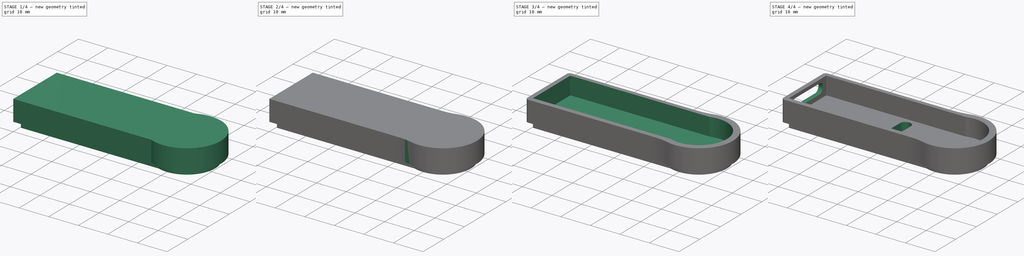
[diagram: build sequence overview — one tinted view per stage of 4, left to right]
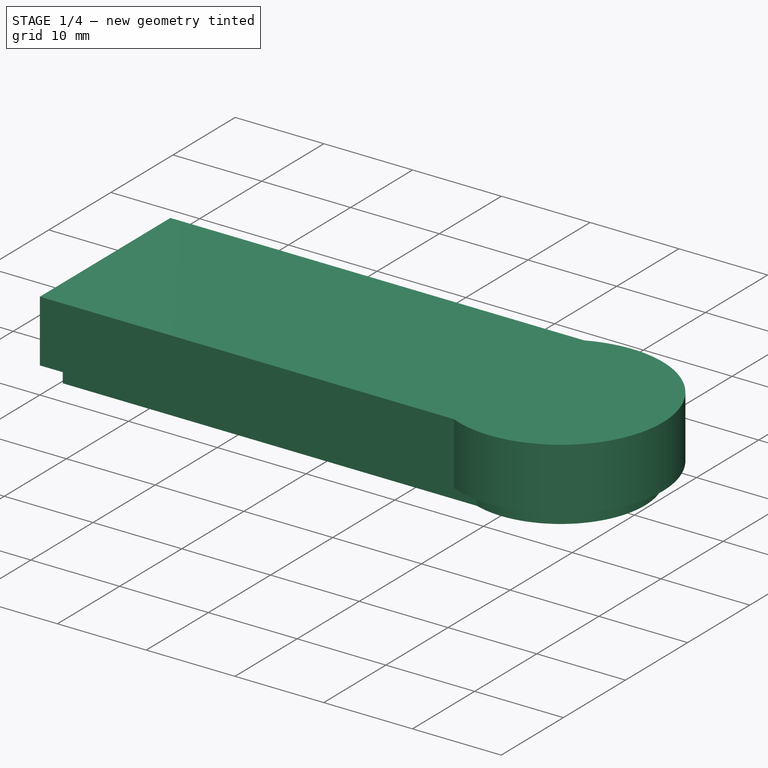
[diagram: stage 1 of 4 — iso view after this stage's code; geometry added in this stage tinted green]
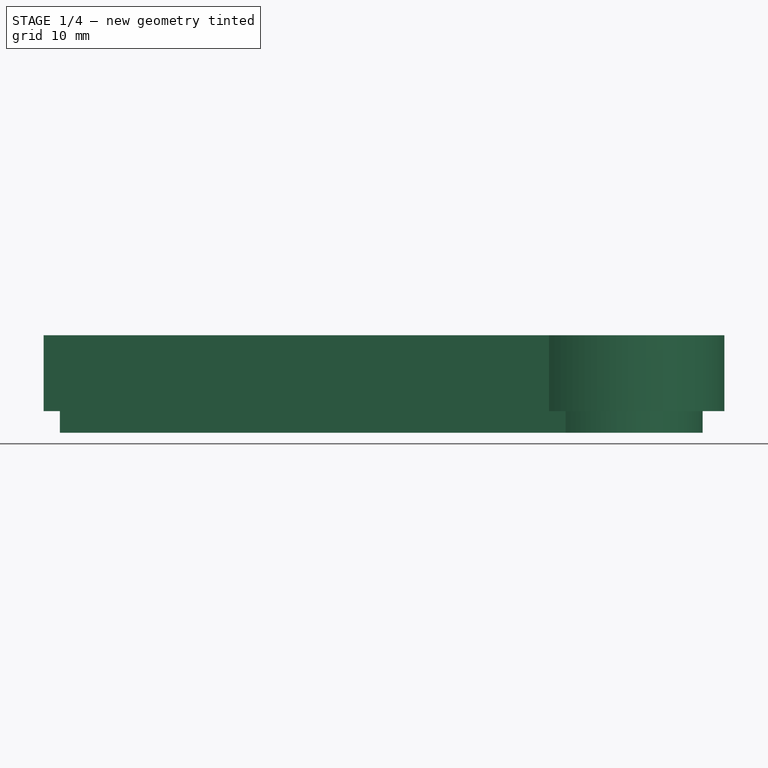
[diagram: stage 1 of 4 — front view after this stage's code; geometry added in this stage tinted green]
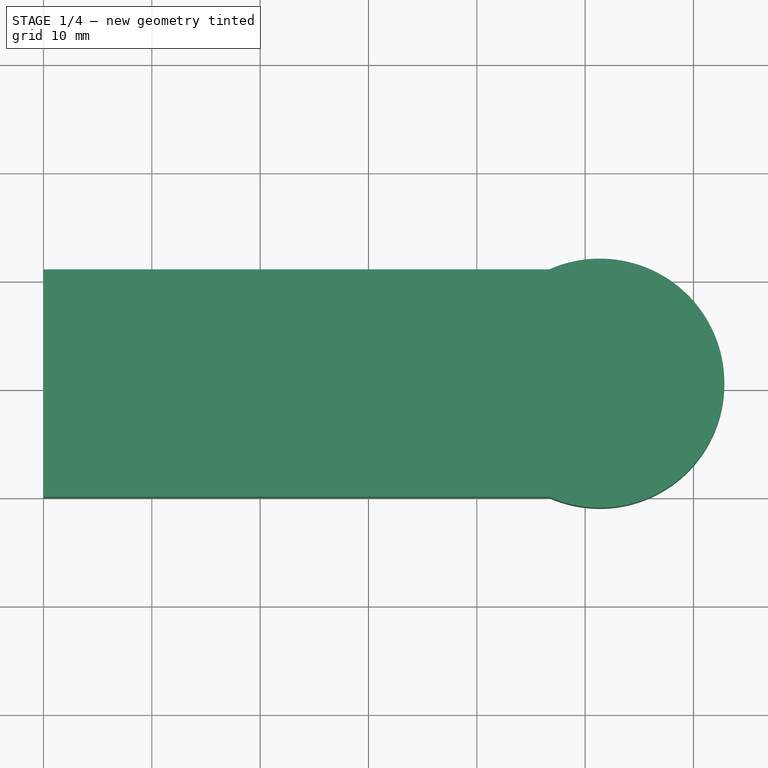
[diagram: stage 1 of 4 — top view after this stage's code; geometry added in this stage tinted green]
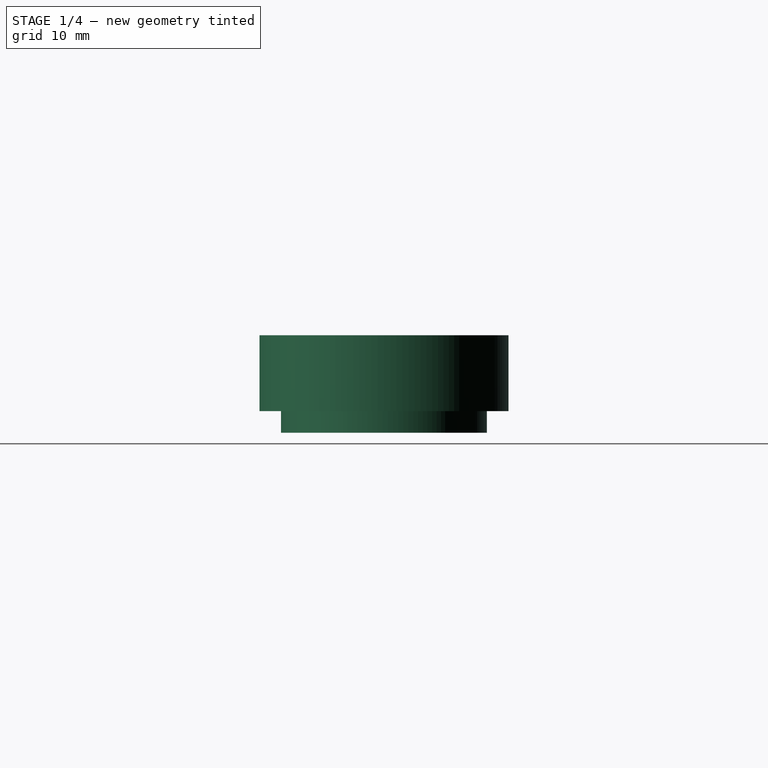
[diagram: stage 1 of 4 — right view after this stage's code; geometry added in this stage tinted green]
FCSTD DOCUMENT  (FreeCAD 0.16R6706 (Git))
Label: oaps3_DeckelP1
License: All rights reserved
LicenseURL: http://en.wikipedia.org/wiki/All_rights_reserved
objects: Sketcher::SketchObject×5, PartDesign::Fillet×4, PartDesign::Pocket×3, PartDesign::Pad×2
note: 19 computed .brp shape members not serialized (recipe doc carries the construction recipe); baked Part::Feature solids carry a one-line shape summary decoded from their .brp

FEATURE [Sketcher::SketchObject] Sketch003  label="root"
  Placement = pos=(0,0,69) rot=(0,0,1;0rad)
  sketch-geometry (4):
    g0: LineSegment StartX=0.013913 StartY=21 StartZ=0 EndX=46.6638 EndY=21 EndZ=0
    g1: LineSegment StartX=46.6638 StartY=0 StartZ=0 EndX=0.013913 EndY=0 EndZ=0
    g2: LineSegment StartX=0.013913 StartY=0 StartZ=0 EndX=0.013913 EndY=21 EndZ=0
    g3: ArcOfCircle CenterX=51.3543 CenterY=10.5 CenterZ=0 NormalX=0 NormalY=0 NormalZ=1 Radius=11.5 StartAngle=4.29228 EndAngle=8.27409
  constraints (12):
    c: Coincident(g1,g2)
    c: Coincident(g2,g0)
    c: Horizontal(g0)
    c: Horizontal(g1)
    c: Vertical(g2)
    c: PointOnObject(g1,g-1)
    c: PointOnObject(g3,g-1)
    c: Radius(g3) = 11.5
    c: Coincident(g3,g0)
    c: Coincident(g3,g1)
    c: Distance(g1,g0) = 21
    c: Equal(g0,g1)
FEATURE [PartDesign::Pad] Pad
  Length = 7
  Length2 = 100
  Placement = pos=(0,0,69) rot=(0,0,1;0rad)
  Sketch = -> Sketch003
  Type = 0
FEATURE [Sketcher::SketchObject] Sketch  label="Deckelschnitt"
  Placement = pos=(0,0,69) rot=(1,0,0;3.14159rad)
  Support = -> Pad [Face5]
  sketch-geometry (4):
    g0: LineSegment StartX=1.51172 StartY=-19.5264 StartZ=0 EndX=48.4042 EndY=-19.5264 EndZ=0
    g1: ArcOfCircle CenterX=51.3408 CenterY=-10.4917 CenterZ=0 NormalX=0 NormalY=0 NormalZ=1 Radius=9.5 StartAngle=4.39812 EndAngle=8.19109
    g2: LineSegment StartX=1.51172 StartY=-1.52638 StartZ=0 EndX=48.1985 EndY=-1.52638 EndZ=0
    g3: LineSegment StartX=1.51172 StartY=-1.52638 StartZ=0 EndX=1.51172 EndY=-19.5264 EndZ=0
  constraints (9):
    c: Radius(g1) = 9.5
    c: Coincident(g1,g0)
    c: Coincident(g2,g1)
    c: Coincident(g3,g0)
    c: Coincident(g3,g2)
    c: Parallel(g2,g0)
    c: Angle(g3,g2,g2) = 1.5708
    c: Distance(g3) = 18
    c: Parallel(g3,g-2)
FEATURE [PartDesign::Pad] Pad001
  Length = 2
  Length2 = 100
  Placement = pos=(0,0,69) rot=(0,0,1;0rad)
  Sketch = -> Sketch
  Type = 0
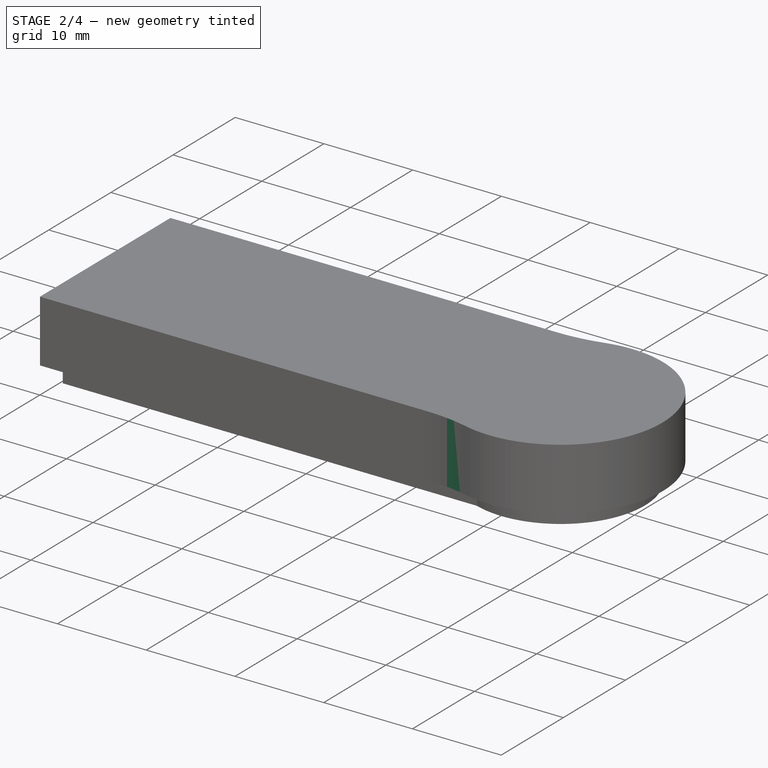
[diagram: stage 2 of 4 — iso view after this stage's code; geometry added in this stage tinted green]
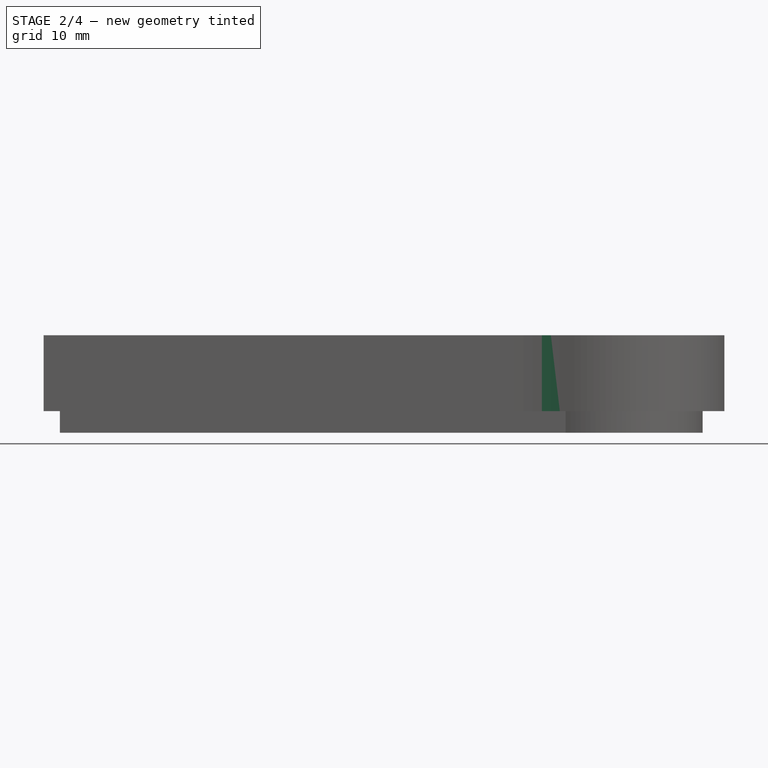
[diagram: stage 2 of 4 — front view after this stage's code; geometry added in this stage tinted green]
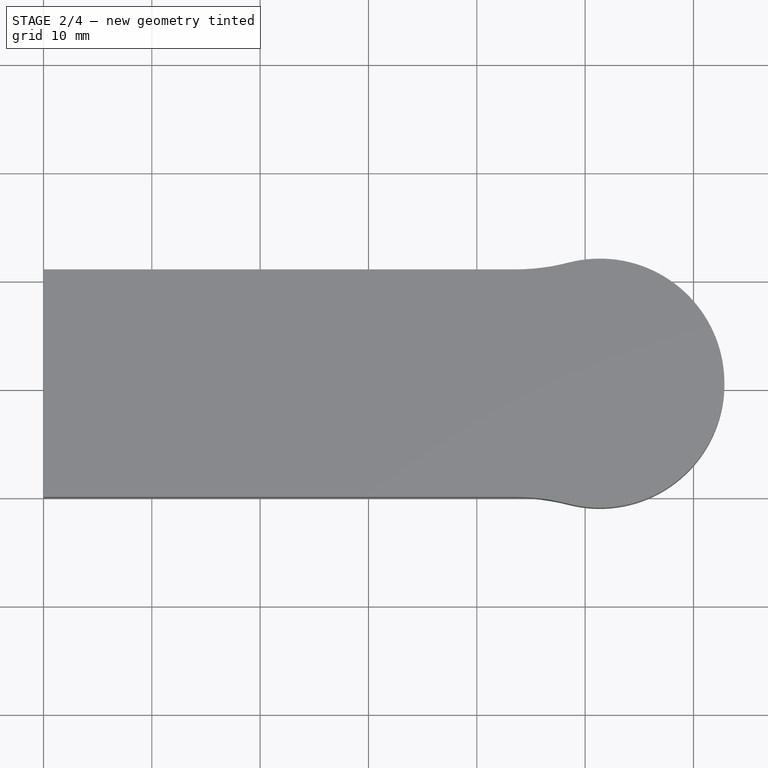
[diagram: stage 2 of 4 — top view after this stage's code; geometry added in this stage tinted green]
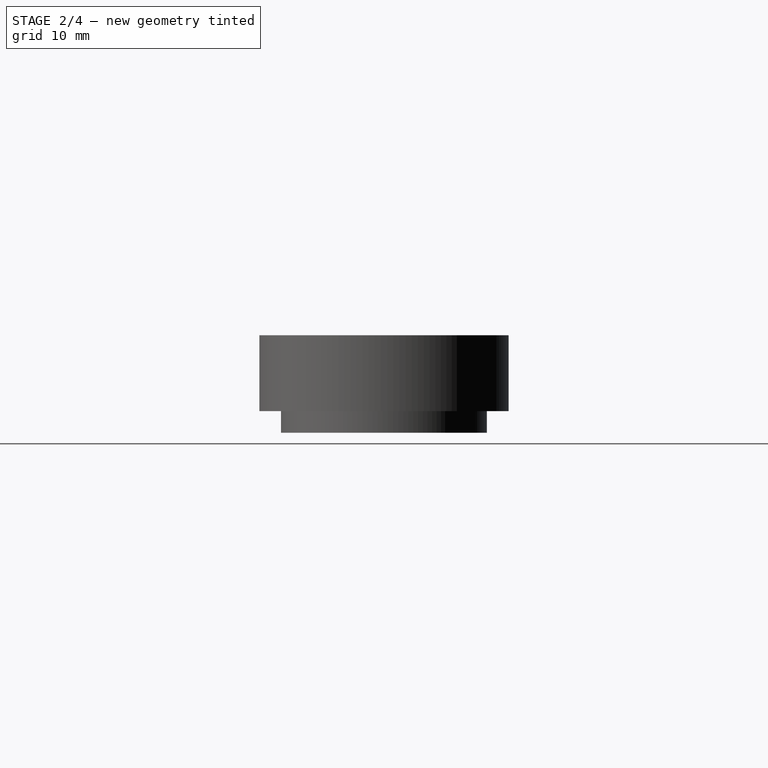
[diagram: stage 2 of 4 — right view after this stage's code; geometry added in this stage tinted green]
FEATURE [PartDesign::Fillet] Fillet
  Base = -> Pad001 [Edge5]
  Placement = pos=(0,0,69) rot=(0,0,1;0rad)
  Radius = 20
FEATURE [PartDesign::Fillet] Fillet001
  Base = -> Fillet [Edge3]
  Placement = pos=(0,0,69) rot=(0,0,1;0rad)
  Radius = 20
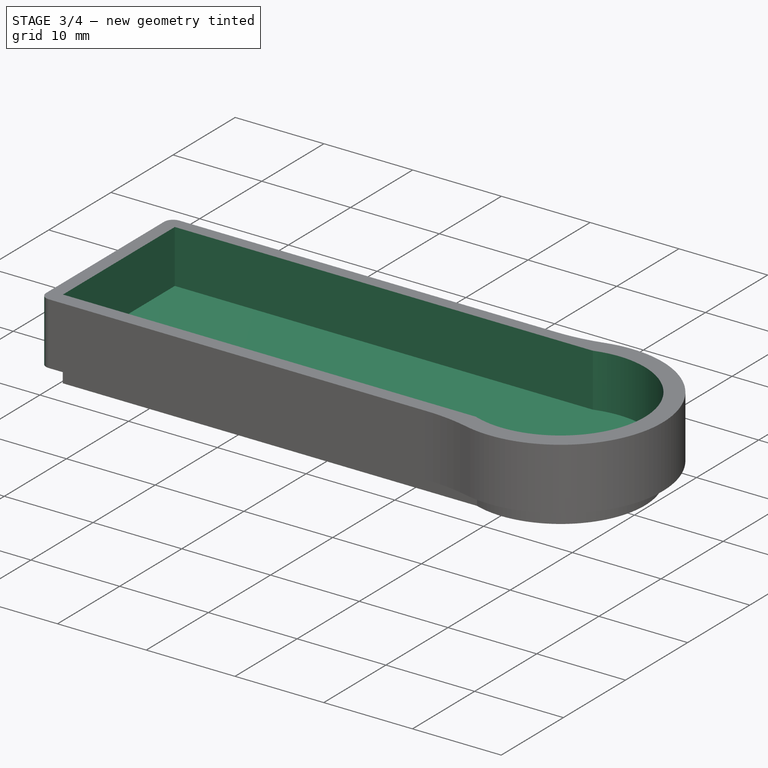
[diagram: stage 3 of 4 — iso view after this stage's code; geometry added in this stage tinted green]
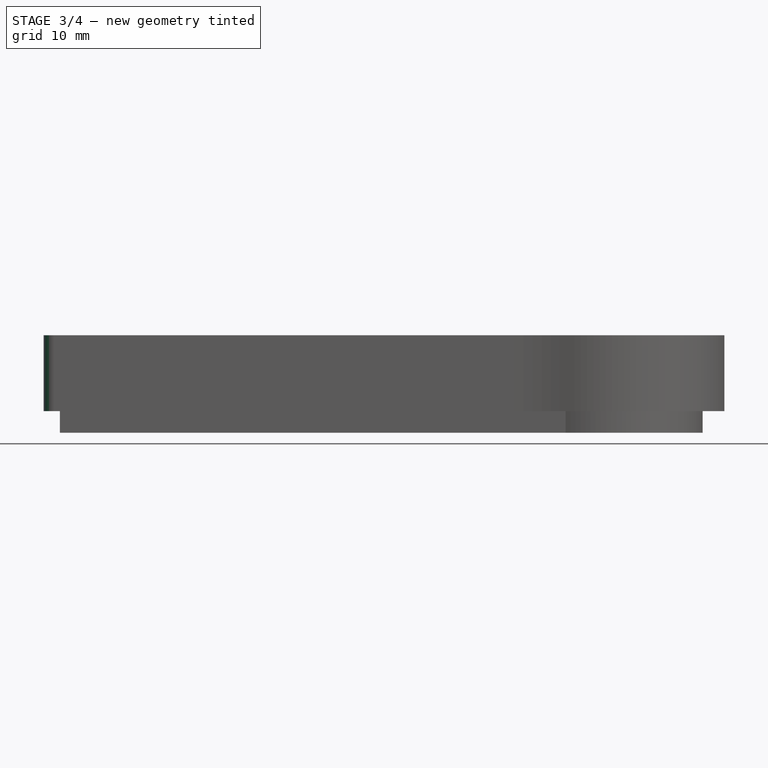
[diagram: stage 3 of 4 — front view after this stage's code; geometry added in this stage tinted green]
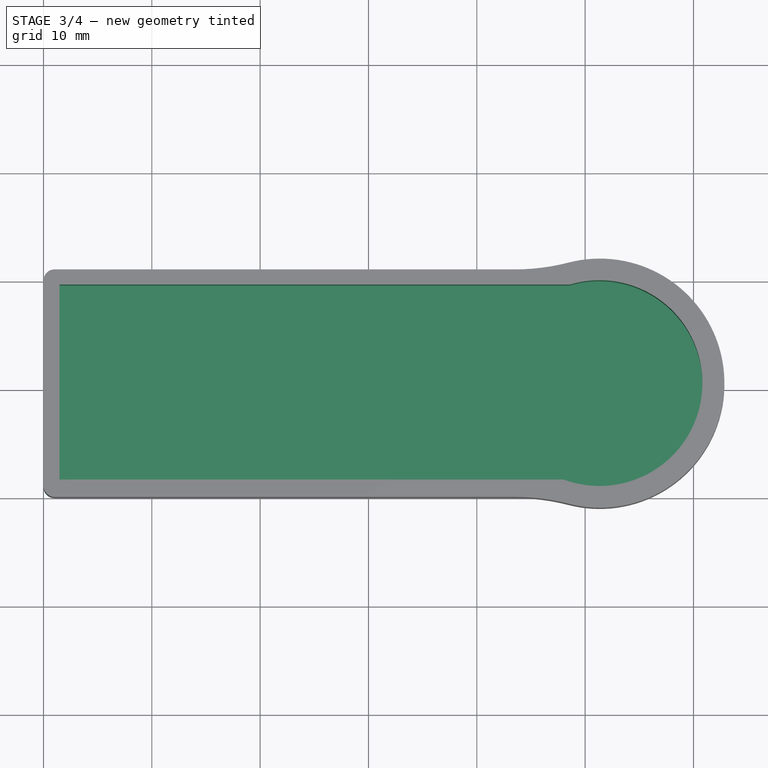
[diagram: stage 3 of 4 — top view after this stage's code; geometry added in this stage tinted green]
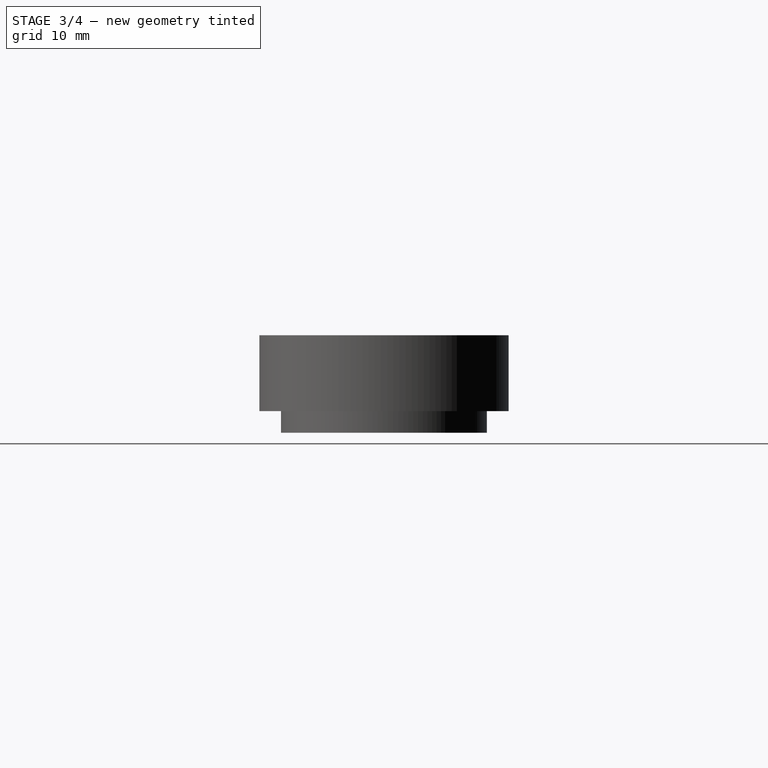
[diagram: stage 3 of 4 — right view after this stage's code; geometry added in this stage tinted green]
FEATURE [PartDesign::Fillet] Fillet002
  Base = -> Fillet001 [Edge21]
  Placement = pos=(0,0,69) rot=(0,0,1;0rad)
  Radius = 1
FEATURE [PartDesign::Fillet] Fillet003
  Base = -> Fillet002 [Edge19]
  Placement = pos=(0,0,69) rot=(0,0,1;0rad)
  Radius = 1
FEATURE [Sketcher::SketchObject] Sketch004  label="Deckelschnitt001"
  Placement = pos=(0,0,76) rot=(0,0,1;0rad)
  Support = -> Fillet003 [Face14]
  sketch-geometry (4):
    g0: LineSegment StartX=1.48206 StartY=1.60733 StartZ=0 EndX=47.9995 EndY=1.60733 EndZ=0
    g1: ArcOfCircle CenterX=51.3218 CenterY=10.5074 CenterZ=0 NormalX=0 NormalY=0 NormalZ=1 Radius=9.5 StartAngle=4.35512 EndAngle=8.14524
    g2: LineSegment StartX=1.48206 StartY=19.6073 StartZ=0 EndX=48.5938 EndY=19.6073 EndZ=0
    g3: LineSegment StartX=1.48206 StartY=19.6073 StartZ=0 EndX=1.48206 EndY=1.60733 EndZ=0
  constraints (5):
    c: Radius(g1) = 9.5
    c: Coincident(g1,g0)
    c: Coincident(g2,g1)
    c: Coincident(g3,g0)
    c: Coincident(g3,g2)
FEATURE [PartDesign::Pocket] Pocket
  Length = 6
  Placement = pos=(0,0,69) rot=(0,0,1;0rad)
  Sketch = -> Sketch004
  Type = 0
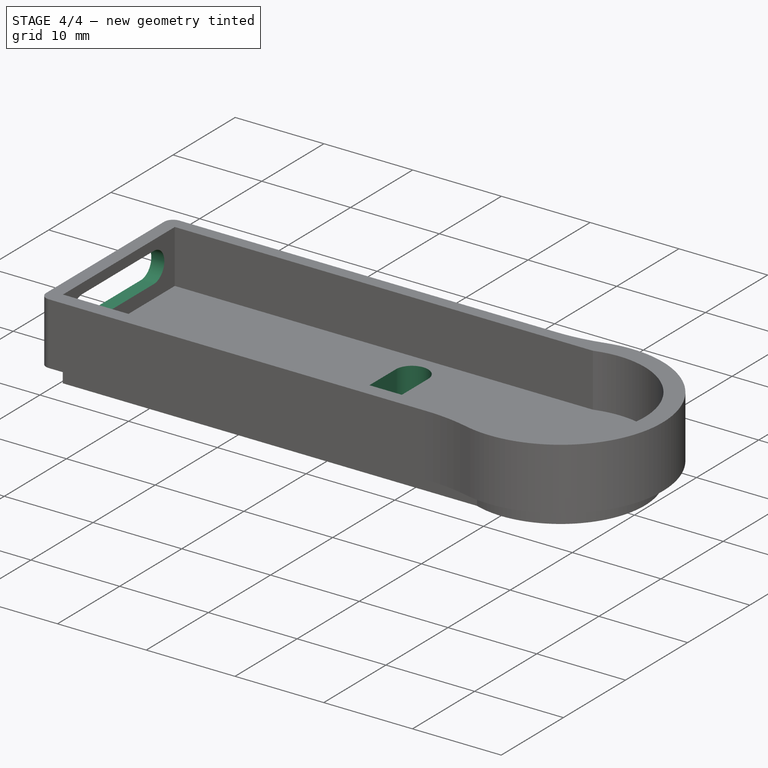
[diagram: stage 4 of 4 — iso view after this stage's code; geometry added in this stage tinted green]
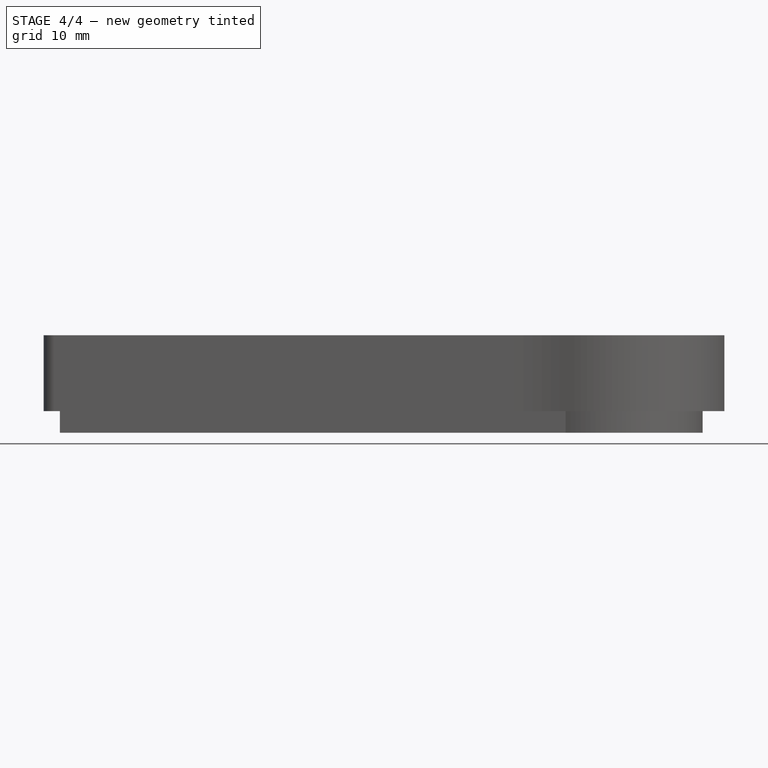
[diagram: stage 4 of 4 — front view after this stage's code; geometry added in this stage tinted green]
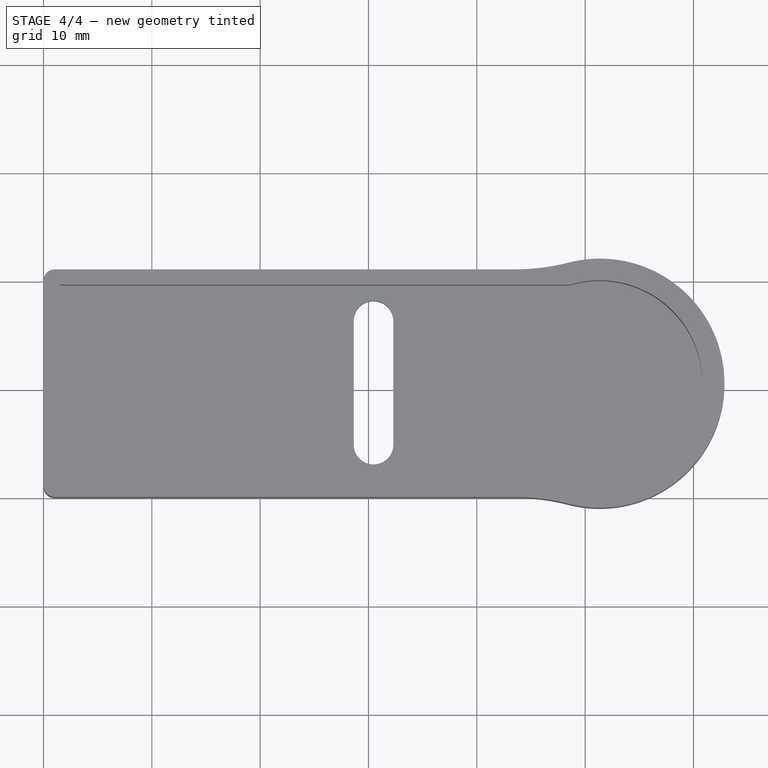
[diagram: stage 4 of 4 — top view after this stage's code; geometry added in this stage tinted green]
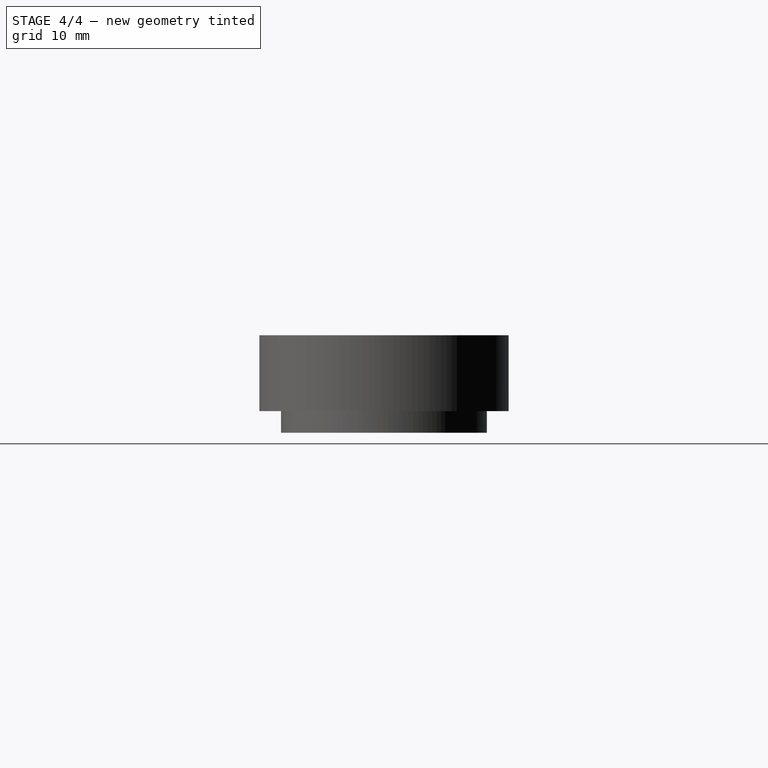
[diagram: stage 4 of 4 — right view after this stage's code; geometry added in this stage tinted green]
FEATURE [Sketcher::SketchObject] Sketch005
  Placement = pos=(0.013913,0,69) rot=(0.57735,-0.57735,-0.57735;2.0944rad)
  Support = -> Pocket [Face2]
  sketch-geometry (4):
    g0: ArcOfCircle CenterX=-16.2326 CenterY=4.16871 CenterZ=0 NormalX=0 NormalY=0 NormalZ=1 Radius=1.68942 StartAngle=1.5708 EndAngle=4.71239
    g1: ArcOfCircle CenterX=-4.73362 CenterY=4.16871 CenterZ=0 NormalX=0 NormalY=0 NormalZ=1 Radius=1.68942 StartAngle=4.71239 EndAngle=7.85398
    g2: LineSegment StartX=-16.2326 StartY=2.47929 StartZ=0 EndX=-4.73362 EndY=2.47929 EndZ=0
    g3: LineSegment StartX=-16.2326 StartY=5.85814 StartZ=0 EndX=-4.73362 EndY=5.85814 EndZ=0
  constraints (6):
    c: Tangent(g0,g3) = 1.5708
    c: Tangent(g0,g2) = -1.5708
    c: Tangent(g2,g1) = -1.5708
    c: Tangent(g3,g1) = 1.5708
    c: Horizontal(g2)
    c: Equal(g0,g1)
FEATURE [PartDesign::Pocket] Pocket001
  Length = 5
  Placement = pos=(0,0,69) rot=(0,0,1;0rad)
  Sketch = -> Sketch005
  Type = 0
FEATURE [Sketcher::SketchObject] Sketch006
  Placement = pos=(0,0,70) rot=(0,0,1;0rad)
  Support = -> Pocket001 [Face24]
  sketch-geometry (4):
    g0: ArcOfCircle CenterX=30.4635 CenterY=16.3762 CenterZ=0 NormalX=0 NormalY=0 NormalZ=1 Radius=1.82795 StartAngle=0 EndAngle=3.14159
    g1: ArcOfCircle CenterX=30.4635 CenterY=4.93421 CenterZ=0 NormalX=0 NormalY=0 NormalZ=1 Radius=1.82795 StartAngle=3.14159 EndAngle=6.28319
    g2: LineSegment StartX=28.6355 StartY=16.3762 StartZ=0 EndX=28.6355 EndY=4.93421 EndZ=0
    g3: LineSegment StartX=32.2914 StartY=16.3762 StartZ=0 EndX=32.2914 EndY=4.93421 EndZ=0
  constraints (6):
    c: Tangent(g0,g3) = 1.5708
    c: Tangent(g0,g2) = -1.5708
    c: Tangent(g2,g1) = -1.5708
    c: Tangent(g3,g1) = 1.5708
    c: Vertical(g2)
    c: Equal(g0,g1)
FEATURE [PartDesign::Pocket] Pocket002
  Length = 5
  Placement = pos=(0,0,69) rot=(0,0,1;0rad)
  Sketch = -> Sketch006
  Type = 0
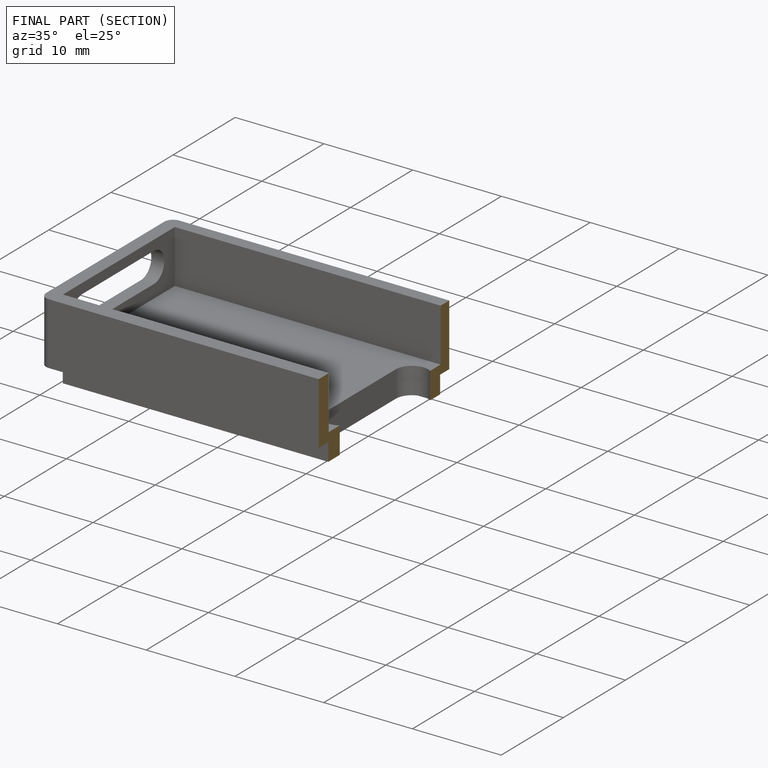
[diagram: finished part — half-section view (interior)]
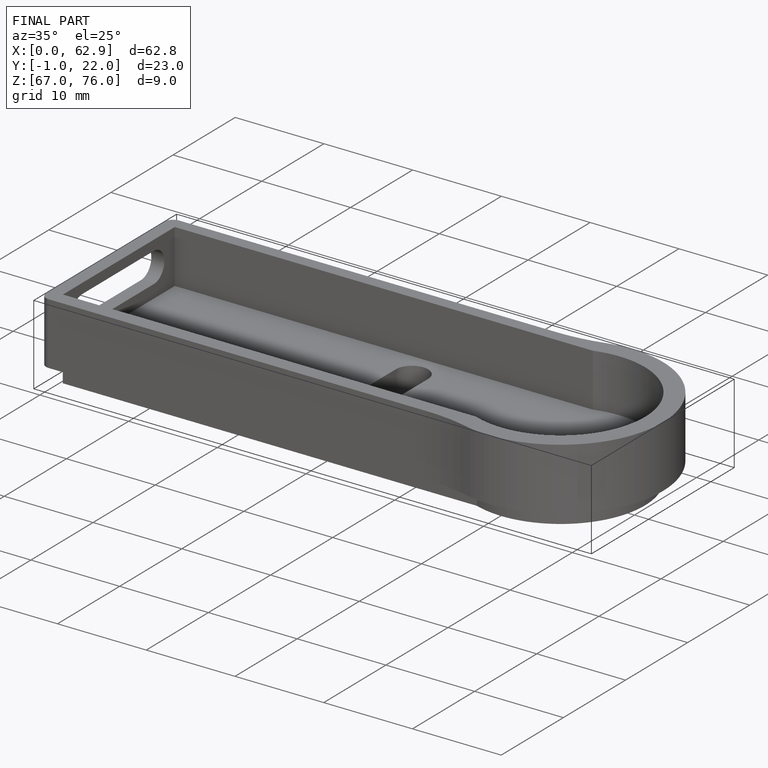
[diagram: finished part — iso view with bounding-box wireframe]
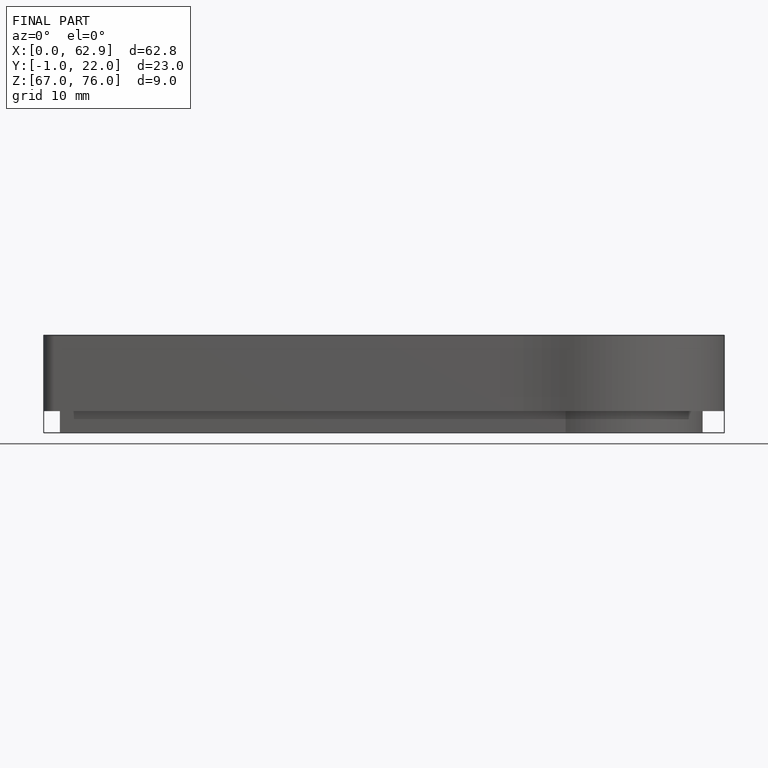
[diagram: finished part — front view with bounding-box wireframe]
